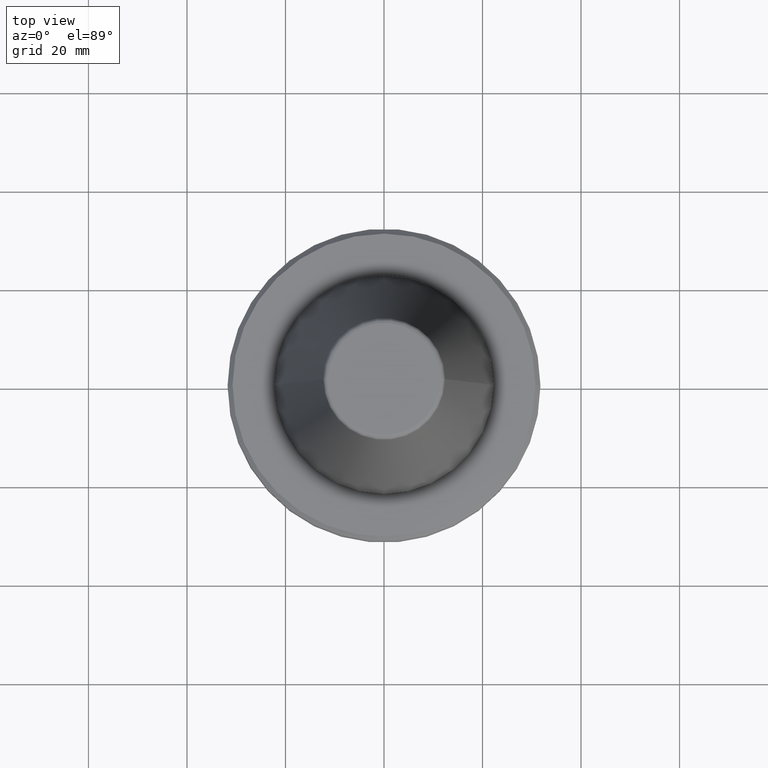
[diagram: clean part render]
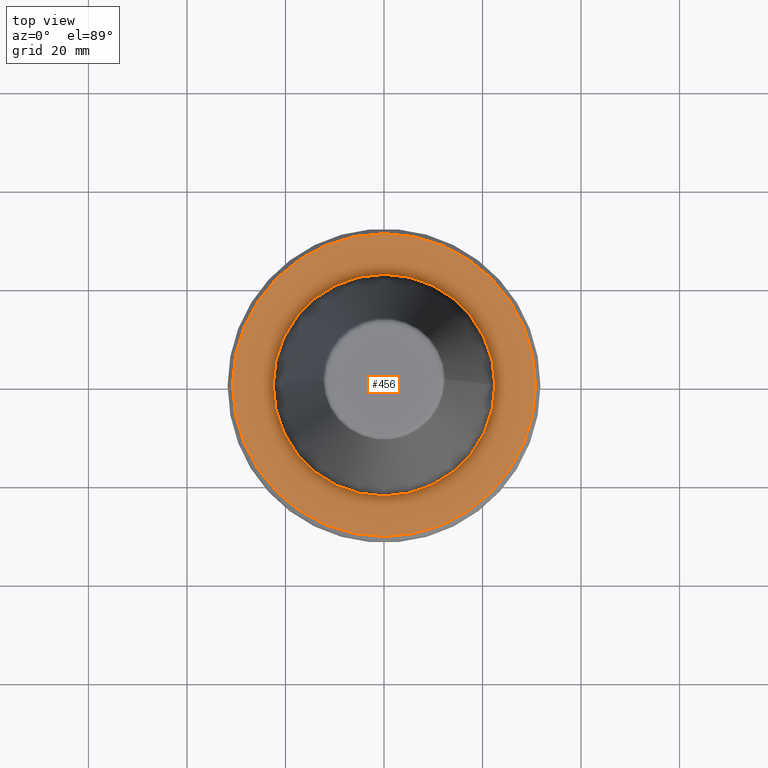
[diagram: same view with one face highlighted and labeled with its STEP entity id]
A machine part, top view. The second image highlights one B-rep face of the part: STEP entity #456.
In plain terms, the highlighted planar face has unit normal (0, 0, -1).
Its self-contained STEP definition (entity closure, byte-faithful):
#2 = EDGE_LOOP ( 'NONE', ( #394, #924 ) ) ;
#17 = VERTEX_POINT ( 'NONE', #30 ) ;
#24 = DIRECTION ( 'NONE',  ( 1.000000000000000000, 0.0000000000000000000, 0.0000000000000000000 ) ) ;
#29 = DIRECTION ( 'NONE',  ( 1.000000000000000000, 0.0000000000000000000, 0.0000000000000000000 ) ) ;
#30 = CARTESIAN_POINT ( 'NONE',  ( -22.50000000000040900, 2.755455298081594900E-015, -3.199999999999896700 ) ) ;
#31 = EDGE_CURVE ( 'NONE', #17, #1149, #376, .T. ) ;
#49 = DIRECTION ( 'NONE',  ( 1.000000000000000000, 0.0000000000000000000, 0.0000000000000000000 ) ) ;
#56 = VERTEX_POINT ( 'NONE', #927 ) ;
#106 = CARTESIAN_POINT ( 'NONE',  ( 0.0000000000000000000, 30.75000000000005700, -3.199999999999869600 ) ) ;
#124 = PLANE ( 'NONE',  #1119 ) ;
#128 = ORIENTED_EDGE ( 'NONE', *, *, #326, .T. ) ;
#264 = FACE_BOUND ( 'NONE', #2, .T. ) ;
#294 = CARTESIAN_POINT ( 'NONE',  ( 0.0000000000000000000, 0.0000000000000000000, -3.199999999999869600 ) ) ;
#324 = DIRECTION ( 'NONE',  ( -0.0000000000000000000, -0.0000000000000000000, 1.000000000000000000 ) ) ;
#326 = EDGE_CURVE ( 'NONE', #875, #56, #613, .T. ) ;
#374 = DIRECTION ( 'NONE',  ( -1.000000000000000000, 0.0000000000000000000, -0.0000000000000000000 ) ) ;
#376 = CIRCLE ( 'NONE', #907, 22.50000000000040900 ) ;
#381 = ORIENTED_EDGE ( 'NONE', *, *, #949, .T. ) ;
#394 = ORIENTED_EDGE ( 'NONE', *, *, #465, .F. ) ;
#456 = ADVANCED_FACE ( 'NONE', ( #264, #704 ), #124, .F. ) ;
#465 = EDGE_CURVE ( 'NONE', #1149, #17, #928, .T. ) ;
#511 = AXIS2_PLACEMENT_3D ( 'NONE', #1144, #580, #49 ) ;
#552 = CARTESIAN_POINT ( 'NONE',  ( 0.0000000000000000000, 0.0000000000000000000, -3.199999999999869600 ) ) ;
#580 = DIRECTION ( 'NONE',  ( -0.0000000000000000000, -0.0000000000000000000, 1.000000000000000000 ) ) ;
#613 = CIRCLE ( 'NONE', #820, 30.75000000000005700 ) ;
#704 = FACE_OUTER_BOUND ( 'NONE', #1125, .T. ) ;
#722 = DIRECTION ( 'NONE',  ( -0.0000000000000000000, -0.0000000000000000000, 1.000000000000000000 ) ) ;
#726 = DIRECTION ( 'NONE',  ( 0.0000000000000000000, 0.0000000000000000000, -1.000000000000000000 ) ) ;
#820 = AXIS2_PLACEMENT_3D ( 'NONE', #1046, #839, #29 ) ;
#839 = DIRECTION ( 'NONE',  ( -0.0000000000000000000, -0.0000000000000000000, 1.000000000000000000 ) ) ;
#875 = VERTEX_POINT ( 'NONE', #1130 ) ;
#907 = AXIS2_PLACEMENT_3D ( 'NONE', #294, #722, #24 ) ;
#922 = CIRCLE ( 'NONE', #511, 30.75000000000005700 ) ;
#924 = ORIENTED_EDGE ( 'NONE', *, *, #31, .F. ) ;
#927 = CARTESIAN_POINT ( 'NONE',  ( -30.75000000000005700, 0.0000000000000000000, -3.199999999999869600 ) ) ;
#928 = CIRCLE ( 'NONE', #1188, 22.50000000000040900 ) ;
#949 = EDGE_CURVE ( 'NONE', #56, #875, #922, .T. ) ;
#1046 = CARTESIAN_POINT ( 'NONE',  ( 0.0000000000000000000, 0.0000000000000000000, -3.199999999999869600 ) ) ;
#1102 = CARTESIAN_POINT ( 'NONE',  ( 22.50000000000040900, 0.0000000000000000000, -3.199999999999896700 ) ) ;
#1119 = AXIS2_PLACEMENT_3D ( 'NONE', #106, #726, #374 ) ;
#1125 = EDGE_LOOP ( 'NONE', ( #381, #128 ) ) ;
#1130 = CARTESIAN_POINT ( 'NONE',  ( 30.75000000000005700, 3.827021247335478900E-015, -3.199999999999869600 ) ) ;
#1139 = DIRECTION ( 'NONE',  ( 1.000000000000000000, 0.0000000000000000000, 0.0000000000000000000 ) ) ;
#1144 = CARTESIAN_POINT ( 'NONE',  ( 0.0000000000000000000, 0.0000000000000000000, -3.199999999999869600 ) ) ;
#1149 = VERTEX_POINT ( 'NONE', #1102 ) ;
#1188 = AXIS2_PLACEMENT_3D ( 'NONE', #552, #324, #1139 ) ;